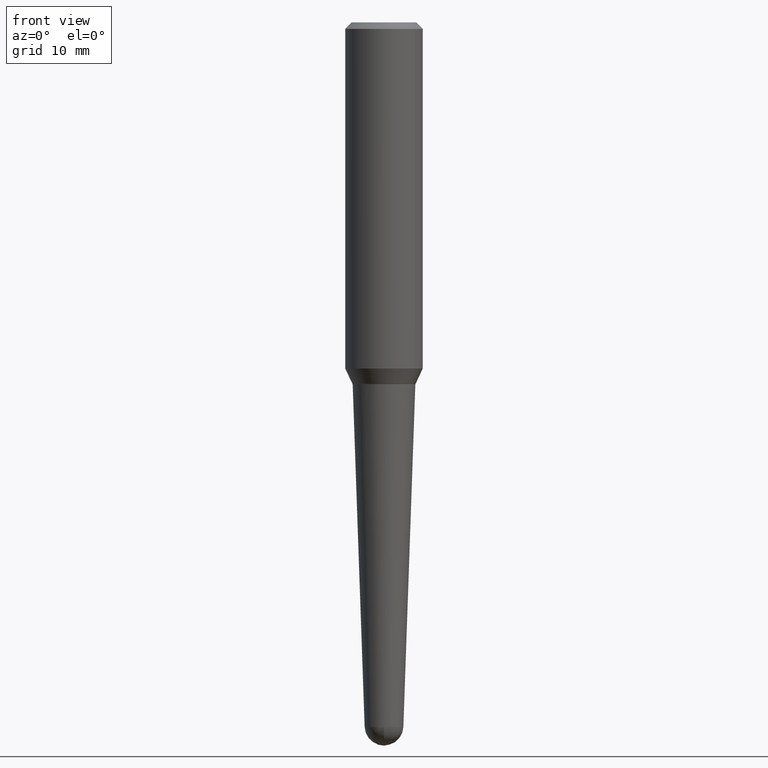
[diagram: clean part render]
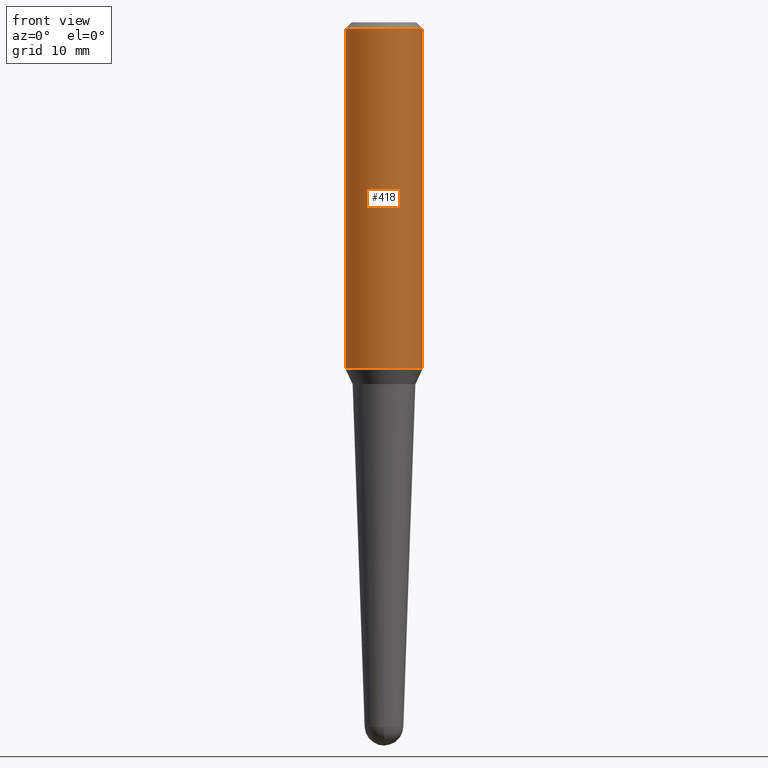
[diagram: same view with one face highlighted and labeled with its STEP entity id]
A machine part, front view. The second image highlights one B-rep face of the part: STEP entity #418.
In plain terms, the highlighted cylindrical surface (partial cylindrical patch) has radius 4.7625 mm, axis along (-0, 0, 1).
Its self-contained STEP definition (entity closure, byte-faithful):
#13 = CARTESIAN_POINT ( 'NONE',  ( -1.450455682483482035E-44, 2.070866303999251778E-30, 5.931196827434296760E-16 ) ) ;
#18 = CARTESIAN_POINT ( 'NONE',  ( -0.1875000000000001110, 1.332267629550190807E-15, 5.931196827434205055E-16 ) ) ;
#22 = LINE ( 'NONE', #133, #79 ) ;
#23 = CIRCLE ( 'NONE', #86, 0.1874999999999999722 ) ;
#44 = CYLINDRICAL_SURFACE ( 'NONE', #421, 0.1875000000000001110 ) ;
#54 = VECTOR ( 'NONE', #329, 39.37007874015748143 ) ;
#62 = EDGE_CURVE ( 'NONE', #171, #75, #285, .T. ) ;
#75 = VERTEX_POINT ( 'NONE', #444 ) ;
#79 = VECTOR ( 'NONE', #272, 39.37007874015748143 ) ;
#84 = ORIENTED_EDGE ( 'NONE', *, *, #182, .T. ) ;
#86 = AXIS2_PLACEMENT_3D ( 'NONE', #311, #277, #207 ) ;
#91 = DIRECTION ( 'NONE',  ( -2.445468806185136597E-29, 3.491481338843145583E-15, 1.000000000000000000 ) ) ;
#108 = EDGE_CURVE ( 'NONE', #171, #437, #368, .T. ) ;
#133 = CARTESIAN_POINT ( 'NONE',  ( 0.1875000000000001110, -1.309305502066173628E-15, 5.931196827434387479E-16 ) ) ;
#171 = VERTEX_POINT ( 'NONE', #336 ) ;
#182 = EDGE_CURVE ( 'NONE', #437, #352, #22, .T. ) ;
#189 = FACE_OUTER_BOUND ( 'NONE', #413, .T. ) ;
#190 = CARTESIAN_POINT ( 'NONE',  ( 4.095808220968802460E-29, -5.847728637888946996E-15, -1.674856048300264355 ) ) ;
#207 = DIRECTION ( 'NONE',  ( 1.000000000000000000, -6.982962677686266711E-15, 0.000000000000000000 ) ) ;
#255 = ORIENTED_EDGE ( 'NONE', *, *, #62, .F. ) ;
#272 = DIRECTION ( 'NONE',  ( -2.445468806185136877E-29, 3.491481338843145188E-15, 1.000000000000000000 ) ) ;
#277 = DIRECTION ( 'NONE',  ( -2.445468806185136597E-29, 3.491481338843145583E-15, 1.000000000000000000 ) ) ;
#283 = CARTESIAN_POINT ( 'NONE',  ( 0.1874999999999999722, -1.418414293905023123E-15, -0.03125000000000003469 ) ) ;
#285 = LINE ( 'NONE', #18, #54 ) ;
#288 = CARTESIAN_POINT ( 'NONE',  ( 0.1875000000000002220, -7.157034139955123582E-15, -1.674856048300264355 ) ) ;
#292 = AXIS2_PLACEMENT_3D ( 'NONE', #190, #91, #442 ) ;
#311 = CARTESIAN_POINT ( 'NONE',  ( 7.642090019328561499E-31, -1.091087918388484350E-16, -0.03125000000000003469 ) ) ;
#329 = DIRECTION ( 'NONE',  ( -2.445468806185136877E-29, 3.491481338843145188E-15, 1.000000000000000000 ) ) ;
#334 = EDGE_CURVE ( 'NONE', #75, #352, #23, .T. ) ;
#336 = CARTESIAN_POINT ( 'NONE',  ( -0.1875000000000002220, -4.515461008338757570E-15, -1.674856048300264355 ) ) ;
#352 = VERTEX_POINT ( 'NONE', #283 ) ;
#368 = CIRCLE ( 'NONE', #292, 0.1875000000000002220 ) ;
#379 = ORIENTED_EDGE ( 'NONE', *, *, #108, .T. ) ;
#398 = DIRECTION ( 'NONE',  ( 1.000000000000000000, -6.982962677686266711E-15, 4.852736867747363404E-29 ) ) ;
#413 = EDGE_LOOP ( 'NONE', ( #255, #379, #84, #432 ) ) ;
#418 = ADVANCED_FACE ( 'NONE', ( #189 ), #44, .T. ) ;
#421 = AXIS2_PLACEMENT_3D ( 'NONE', #13, #438, #398 ) ;
#432 = ORIENTED_EDGE ( 'NONE', *, *, #334, .F. ) ;
#437 = VERTEX_POINT ( 'NONE', #288 ) ;
#438 = DIRECTION ( 'NONE',  ( -2.445468806185136597E-29, 3.491481338843145583E-15, 1.000000000000000000 ) ) ;
#442 = DIRECTION ( 'NONE',  ( 1.000000000000000000, -6.982962677686265133E-15, 0.000000000000000000 ) ) ;
#444 = CARTESIAN_POINT ( 'NONE',  ( -0.1874999999999999722, -1.646151085313708425E-15, -0.03125000000000003469 ) ) ;